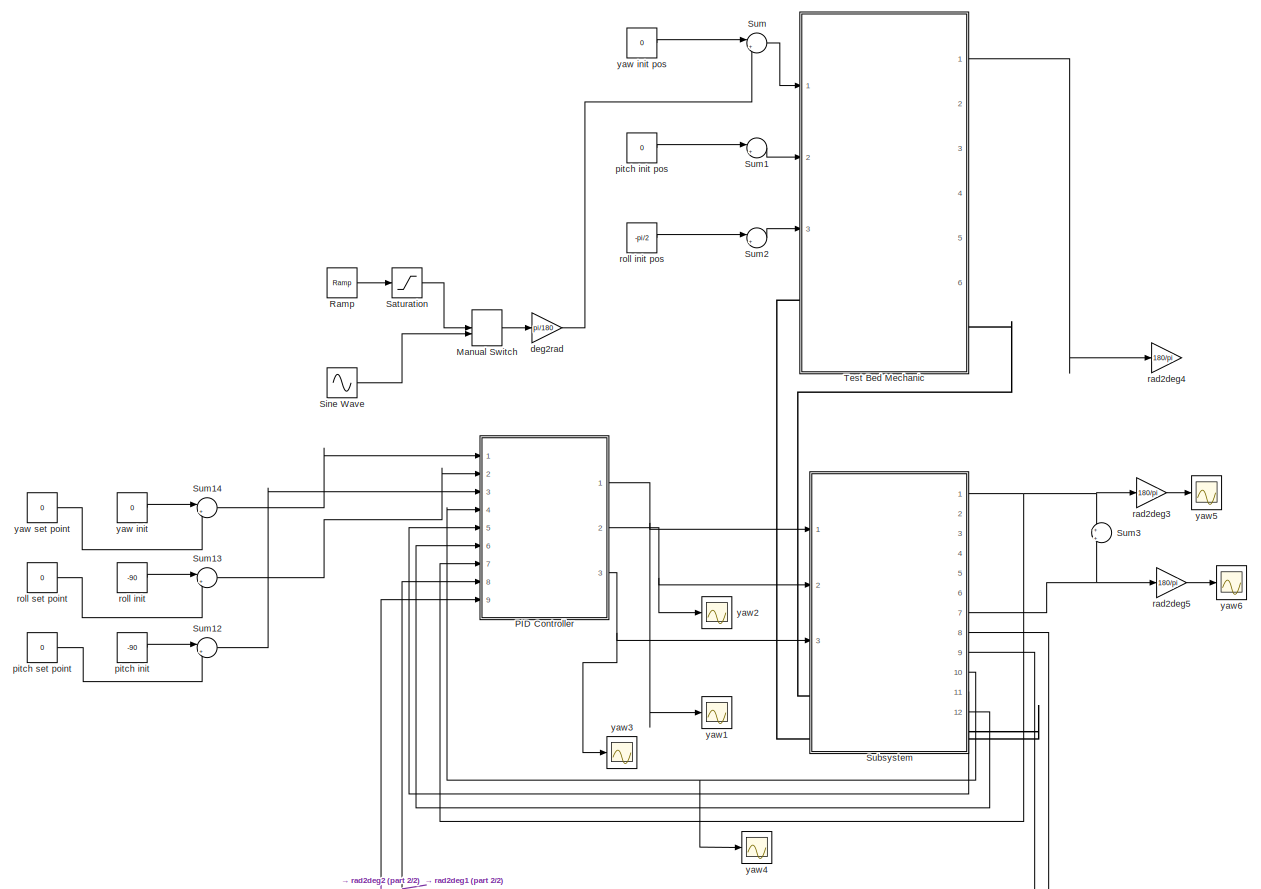
[diagram: root canvas - part 1/2, most of the canvas]
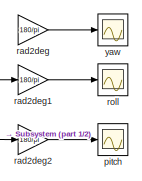
[diagram: root canvas - part 2/2, bottom center region]
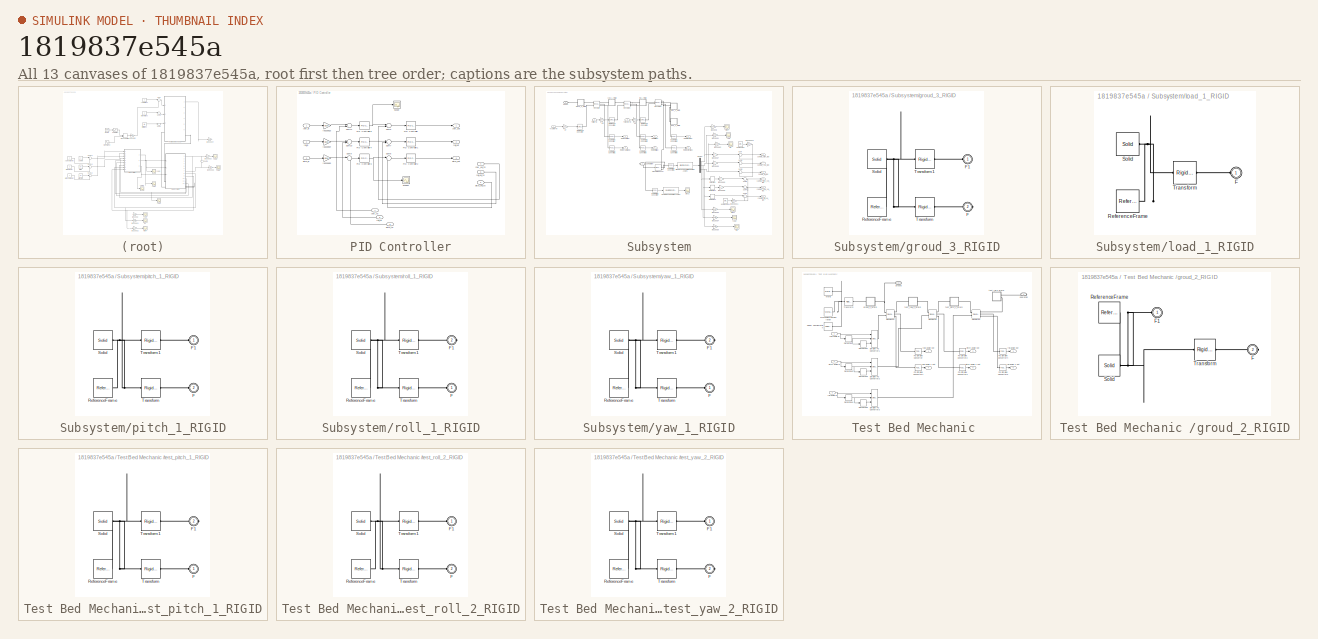
[diagram: thumbnail index - all 13 canvases of the model, root first then tree order]
MODEL slx_1819837e545a
KIND model
CONFIG AbsTol = auto
CONFIG FixedStep = 0.0005
CONFIG MaxStep = auto
CONFIG MinStep = auto
CONFIG RelTol = 1e-3
CONFIG SampleTimeConstraint = Unconstrained
CONFIG Solver = ode2
CONFIG SolverMode = Auto
CONFIG SolverName = ode2
CONFIG StartTime = 0.0
CONFIG StopTime = 10
BLOCK [ManualSwitch] Manual Switch
BLOCK [SubSystem] PID Controller
  Ports = [9, 3]
  RequestExecContextInheritance = off
  TreatAsAtomicUnit = on
  Variant = off
BLOCK [Reference] PID Controller/PID Controller  REF=simulink/Continuous/PID Controller
  Ports = [1, 1]
  SourceBlock = simulink/Continuous/PID Controller
  SourceType = PID 1dof
BLOCK [Reference] PID Controller/PID Controller1  REF=simulink/Continuous/PID Controller
  Ports = [1, 1]
  SourceBlock = simulink/Continuous/PID Controller
  SourceType = PID 1dof
BLOCK [Reference] PID Controller/PID Controller2  REF=simulink/Continuous/PID Controller
  Ports = [1, 1]
  SourceBlock = simulink/Continuous/PID Controller
  SourceType = PID 1dof
BLOCK [Reference] PID Controller/PID Controller3  REF=simulink/Continuous/PID Controller
  Ports = [1, 1]
  SourceBlock = simulink/Continuous/PID Controller
  SourceType = PID 1dof
BLOCK [Reference] PID Controller/PID Controller4  REF=simulink/Continuous/PID Controller
  Ports = [1, 1]
  SourceBlock = simulink/Continuous/PID Controller
  SourceType = PID 1dof
BLOCK [Reference] PID Controller/PID Controller5  REF=simulink/Continuous/PID Controller
  Ports = [1, 1]
  SourceBlock = simulink/Continuous/PID Controller
  SourceType = PID 1dof
BLOCK [Scope] PID Controller/Scope
  Ports = [1]
  ScopeSpecificationString = C++SS(StrPVP('SaveName','ScopeData1'),StrPVP('LimitDataPoints','on'),StrPVP('DataFormat','Array'),StrPVP('Decimation','1'),StrPVP('BlockParamSampleInput','off'))
BLOCK [Scope] PID Controller/Scope1
  Ports = [1]
  ScopeSpecificationString = Simulink.scopes.TimeScopeBlockCfg('CurrentConfiguration', extmgr.ConfigurationSet(extmgr.Configuration('Core','General UI',true),extmgr.Configuration('Core','Source UI',true),extmgr.Configuration('Sources','WiredSimulink',true,'DataLoggingVariableName','ScopeData2'),extmgr.Configuration('Visuals','Time Domain',true,'SerializedDisplays',{struct('MinYLimReal','-3.37651','MaxYLimReal','0.38858','YLab...<+1374ch>
BLOCK [Sum] PID Controller/Sum10
  IconShape = round
  InputSameDT = off
  Inputs = |+-
  OutDataTypeStr = Inherit: Inherit via internal rule
  Ports = [2, 1]
  SaturateOnIntegerOverflow = off
BLOCK [Sum] PID Controller/Sum11
  IconShape = round
  InputSameDT = off
  Inputs = |+-
  OutDataTypeStr = Inherit: Inherit via internal rule
  Ports = [2, 1]
  SaturateOnIntegerOverflow = off
BLOCK [Sum] PID Controller/Sum6
  IconShape = round
  InputSameDT = off
  Inputs = |+-
  OutDataTypeStr = Inherit: Inherit via internal rule
  Ports = [2, 1]
  SaturateOnIntegerOverflow = off
BLOCK [Sum] PID Controller/Sum7
  IconShape = round
  InputSameDT = off
  Inputs = |+-
  OutDataTypeStr = Inherit: Inherit via internal rule
  Ports = [2, 1]
  SaturateOnIntegerOverflow = off
BLOCK [Sum] PID Controller/Sum8
  IconShape = round
  InputSameDT = off
  Inputs = |+-
  OutDataTypeStr = Inherit: Inherit via internal rule
  Ports = [2, 1]
  SaturateOnIntegerOverflow = off
BLOCK [Sum] PID Controller/Sum9
  IconShape = round
  InputSameDT = off
  Inputs = |+-
  OutDataTypeStr = Inherit: Inherit via internal rule
  Ports = [2, 1]
  SaturateOnIntegerOverflow = off
BLOCK [Inport] PID Controller/pitch_fb
  IconDisplay = Port number
  Port = 9
BLOCK [Inport] PID Controller/pitch_in
  IconDisplay = Port number
  Port = 3
BLOCK [Outport] PID Controller/pitch_out
  IconDisplay = Port number
  Port = 3
BLOCK [Inport] PID Controller/pitch_vel_fb
  IconDisplay = Port number
  Port = 6
BLOCK [Gain] PID Controller/rad2deg3
  Gain = pi/180
  OutDataTypeStr = Inherit: Inherit via internal rule
  ParamDataTypeStr = Inherit: Inherit via internal rule
  SaturateOnIntegerOverflow = off
BLOCK [Gain] PID Controller/rad2deg4
  Gain = pi/180
  OutDataTypeStr = Inherit: Inherit via internal rule
  ParamDataTypeStr = Inherit: Inherit via internal rule
  SaturateOnIntegerOverflow = off
BLOCK [Gain] PID Controller/rad2deg5
  Gain = pi/180
  OutDataTypeStr = Inherit: Inherit via internal rule
  ParamDataTypeStr = Inherit: Inherit via internal rule
  SaturateOnIntegerOverflow = off
BLOCK [Inport] PID Controller/roll_fb
  IconDisplay = Port number
  Port = 8
BLOCK [Inport] PID Controller/roll_in
  IconDisplay = Port number
  Port = 2
BLOCK [Outport] PID Controller/roll_out
  IconDisplay = Port number
  Port = 2
BLOCK [Inport] PID Controller/roll_vel_fb
  IconDisplay = Port number
  Port = 5
BLOCK [Inport] PID Controller/yaw_fb
  IconDisplay = Port number
  Port = 7
BLOCK [Inport] PID Controller/yaw_in
  IconDisplay = Port number
BLOCK [Outport] PID Controller/yaw_out
  IconDisplay = Port number
BLOCK [Inport] PID Controller/yaw_vel_fb
  IconDisplay = Port number
  Port = 4
BLOCK [Reference] Ramp  REF=simulink/Sources/Ramp
  Ports = [0, 1]
  SourceBlock = simulink/Sources/Ramp
  SourceType = Ramp
BLOCK [Saturate] Saturation
  InputPortMap = u0
  LowerLimit = -70
  Ports = [1, 1]
  UpperLimit = 70
BLOCK [Sin] Sine Wave
  Amplitude = 90
  Ports = [0, 1]
  SampleTime = 0
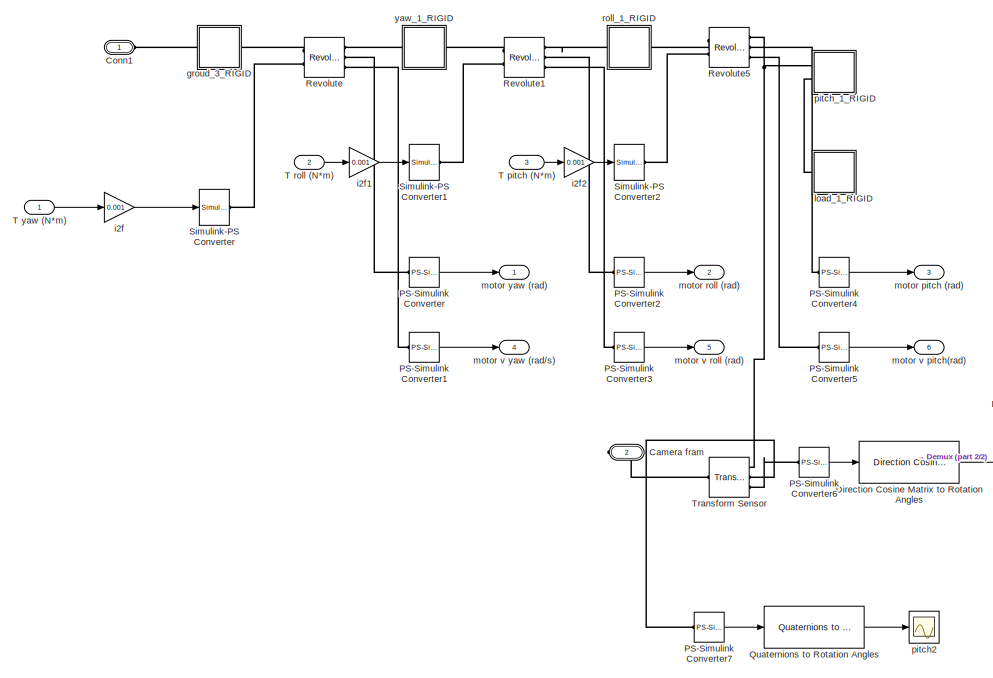
[diagram: Subsystem - part 1/2, central region]
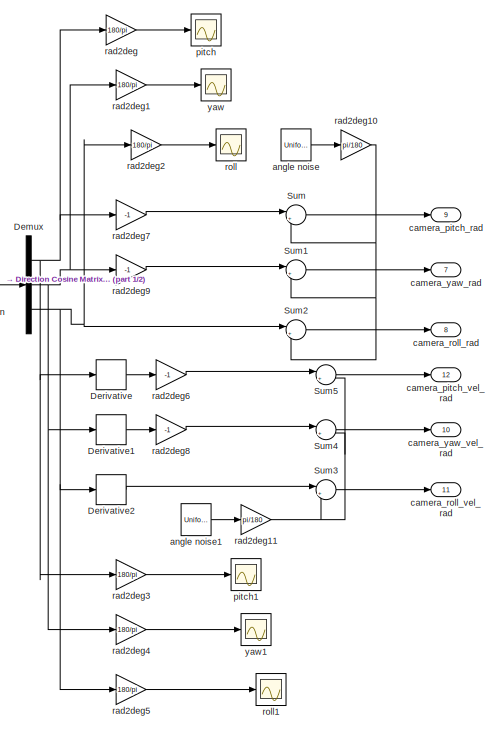
[diagram: Subsystem - part 2/2, right side, full height]
BLOCK [SubSystem] Subsystem
  Ports = [3, 12, 0, 0, 0, 1, 1]
  RequestExecContextInheritance = off
  Variant = off
BLOCK [PMIOPort] Subsystem/Camera fram
  Port = 2
  Side = Right
BLOCK [PMIOPort] Subsystem/Conn1
  Port = 1
  Side = Left
BLOCK [Demux] Subsystem/Demux
  DisplayOption = bar
  Outputs = 3
  Ports = [1, 3]
BLOCK [Derivative] Subsystem/Derivative
BLOCK [Derivative] Subsystem/Derivative1
BLOCK [Derivative] Subsystem/Derivative2
BLOCK [Reference] Subsystem/Direction Cosine Matrix to Rotation Angles  REF=aerolibtransform2/Direction Cosine Matrix
to Rotation Angles
  AttributesFormatString = Rotation Order: %<rotationOrder>
  Ports = [1, 1]
  SourceBlock = aerolibtransform2/Direction Cosine Matrix\nto Rotation Angles
  SourceType = DCM2Ang
BLOCK [Reference] Subsystem/PS-Simulink Converter  REF=nesl_utility/PS-Simulink
Converter
  Ports = [0, 1, 0, 0, 0, 1]
  SourceBlock = nesl_utility/PS-Simulink\nConverter
  SourceType = PS-Simulink\nConverter
BLOCK [Reference] Subsystem/PS-Simulink Converter1  REF=nesl_utility/PS-Simulink
Converter
  Ports = [0, 1, 0, 0, 0, 1]
  SourceBlock = nesl_utility/PS-Simulink\nConverter
  SourceType = PS-Simulink\nConverter
BLOCK [Reference] Subsystem/PS-Simulink Converter2  REF=nesl_utility/PS-Simulink
Converter
  Ports = [0, 1, 0, 0, 0, 1]
  SourceBlock = nesl_utility/PS-Simulink\nConverter
  SourceType = PS-Simulink\nConverter
BLOCK [Reference] Subsystem/PS-Simulink Converter3  REF=nesl_utility/PS-Simulink
Converter
  Ports = [0, 1, 0, 0, 0, 1]
  SourceBlock = nesl_utility/PS-Simulink\nConverter
  SourceType = PS-Simulink\nConverter
BLOCK [Reference] Subsystem/PS-Simulink Converter4  REF=nesl_utility/PS-Simulink
Converter
  Ports = [0, 1, 0, 0, 0, 1]
  SourceBlock = nesl_utility/PS-Simulink\nConverter
  SourceType = PS-Simulink\nConverter
BLOCK [Reference] Subsystem/PS-Simulink Converter5  REF=nesl_utility/PS-Simulink
Converter
  Ports = [0, 1, 0, 0, 0, 1]
  SourceBlock = nesl_utility/PS-Simulink\nConverter
  SourceType = PS-Simulink\nConverter
BLOCK [Reference] Subsystem/PS-Simulink Converter6  REF=nesl_utility/PS-Simulink
Converter
  Ports = [0, 1, 0, 0, 0, 1]
  SourceBlock = nesl_utility/PS-Simulink\nConverter
  SourceType = PS-Simulink\nConverter
BLOCK [Reference] Subsystem/PS-Simulink Converter7  REF=nesl_utility/PS-Simulink
Converter
  Ports = [0, 1, 0, 0, 0, 1]
  SourceBlock = nesl_utility/PS-Simulink\nConverter
  SourceType = PS-Simulink\nConverter
BLOCK [Reference] Subsystem/Quaternions to Rotation Angles  REF=aerolibtransform2/Quaternions to Rotation Angles
  AttributesFormatString = Rotation Order: %<rotationOrder>
  Ports = [1, 1]
  SourceBlock = aerolibtransform2/Quaternions to Rotation Angles
  SourceType = Quat2Ang
BLOCK [Reference] Subsystem/Revolute  REF=sm_lib/Joints/Revolute Joint
  Ports = [0, 0, 0, 0, 0, 2, 3]
  SourceBlock = sm_lib/Joints/Revolute Joint
  SourceType = Revolute Joint
BLOCK [Reference] Subsystem/Revolute1  REF=sm_lib/Joints/Revolute Joint
  Ports = [0, 0, 0, 0, 0, 2, 3]
  SourceBlock = sm_lib/Joints/Revolute Joint
  SourceType = Revolute Joint
BLOCK [Reference] Subsystem/Revolute5  REF=sm_lib/Joints/Revolute Joint
  Ports = [0, 0, 0, 0, 0, 2, 3]
  SourceBlock = sm_lib/Joints/Revolute Joint
  SourceType = Revolute Joint
BLOCK [Reference] Subsystem/Simulink-PS Converter  REF=nesl_utility/Simulink-PS
Converter
  Ports = [1, 0, 0, 0, 0, 0, 1]
  SourceBlock = nesl_utility/Simulink-PS\nConverter
  SourceType = Simulink-PS\nConverter
BLOCK [Reference] Subsystem/Simulink-PS Converter1  REF=nesl_utility/Simulink-PS
Converter
  Ports = [1, 0, 0, 0, 0, 0, 1]
  SourceBlock = nesl_utility/Simulink-PS\nConverter
  SourceType = Simulink-PS\nConverter
BLOCK [Reference] Subsystem/Simulink-PS Converter2  REF=nesl_utility/Simulink-PS
Converter
  Ports = [1, 0, 0, 0, 0, 0, 1]
  SourceBlock = nesl_utility/Simulink-PS\nConverter
  SourceType = Simulink-PS\nConverter
BLOCK [Sum] Subsystem/Sum
  IconShape = round
  InputSameDT = off
  Inputs = |++
  OutDataTypeStr = Inherit: Inherit via internal rule
  Ports = [2, 1]
  SaturateOnIntegerOverflow = off
BLOCK [Sum] Subsystem/Sum1
  IconShape = round
  InputSameDT = off
  Inputs = |++
  OutDataTypeStr = Inherit: Inherit via internal rule
  Ports = [2, 1]
  SaturateOnIntegerOverflow = off
BLOCK [Sum] Subsystem/Sum2
  IconShape = round
  InputSameDT = off
  Inputs = |++
  OutDataTypeStr = Inherit: Inherit via internal rule
  Ports = [2, 1]
  SaturateOnIntegerOverflow = off
BLOCK [Sum] Subsystem/Sum3
  IconShape = round
  InputSameDT = off
  Inputs = |++
  OutDataTypeStr = Inherit: Inherit via internal rule
  Ports = [2, 1]
  SaturateOnIntegerOverflow = off
BLOCK [Sum] Subsystem/Sum4
  IconShape = round
  InputSameDT = off
  Inputs = |++
  OutDataTypeStr = Inherit: Inherit via internal rule
  Ports = [2, 1]
  SaturateOnIntegerOverflow = off
BLOCK [Sum] Subsystem/Sum5
  IconShape = round
  InputSameDT = off
  Inputs = |++
  OutDataTypeStr = Inherit: Inherit via internal rule
  Ports = [2, 1]
  SaturateOnIntegerOverflow = off
BLOCK [Inport] Subsystem/T pitch (N*m)
  IconDisplay = Port number
  Port = 3
BLOCK [Inport] Subsystem/T roll (N*m)
  IconDisplay = Port number
  Port = 2
BLOCK [Inport] Subsystem/T yaw (N*m)
  IconDisplay = Port number
BLOCK [Reference] Subsystem/Transform Sensor  REF=sm_lib/Frames and
Transforms/Transform
Sensor
  Ports = [0, 0, 0, 0, 0, 1, 3]
  SourceBlock = sm_lib/Frames and\nTransforms/Transform\nSensor
  SourceType = Transform\nSensor
BLOCK [UniformRandomNumber] Subsystem/angle noise
  Maximum = 0.02
  Minimum = -0.02
  SampleTime = 0.001
BLOCK [UniformRandomNumber] Subsystem/angle noise1
  Maximum = 0.07
  Minimum = -0.07
  SampleTime = 0.001
BLOCK [Outport] Subsystem/camera_pitch_rad
  IconDisplay = Port number
  Port = 9
BLOCK [Outport] Subsystem/camera_pitch_vel_rad
  IconDisplay = Port number
  Port = 12
BLOCK [Outport] Subsystem/camera_roll_rad
  IconDisplay = Port number
  Port = 8
BLOCK [Outport] Subsystem/camera_roll_vel_rad
  IconDisplay = Port number
  Port = 11
BLOCK [Outport] Subsystem/camera_yaw_rad
  IconDisplay = Port number
  Port = 7
BLOCK [Outport] Subsystem/camera_yaw_vel_rad
  IconDisplay = Port number
  Port = 10
BLOCK [SubSystem] Subsystem/groud_3_RIGID
  Ports = [0, 0, 0, 0, 0, 1, 1]
  RequestExecContextInheritance = off
  Variant = off
BLOCK [PMIOPort] Subsystem/groud_3_RIGID/F
  Port = 2
  Side = Right
BLOCK [PMIOPort] Subsystem/groud_3_RIGID/F1
  Port = 1
  Side = Left
BLOCK [Reference] Subsystem/groud_3_RIGID/ReferenceFrame  REF=sm_lib/Frames and
Transforms/Reference
Frame
  Ports = [0, 0, 0, 0, 0, 0, 1]
  SourceBlock = sm_lib/Frames and\nTransforms/Reference\nFrame
  SourceType = Reference\nFrame
BLOCK [Reference] Subsystem/groud_3_RIGID/Solid  REF=sm_lib/Body Elements/Solid
  Ports = [0, 0, 0, 0, 0, 0, 1]
  SourceBlock = sm_lib/Body Elements/Solid
  SourceType = Solid
BLOCK [Reference] Subsystem/groud_3_RIGID/Transform  REF=sm_lib/Frames and
Transforms/Rigid
Transform
  Ports = [0, 0, 0, 0, 0, 1, 1]
  SourceBlock = sm_lib/Frames and\nTransforms/Rigid\nTransform
  SourceType = Rigid\nTransform
BLOCK [Reference] Subsystem/groud_3_RIGID/Transform1  REF=sm_lib/Frames and
Transforms/Rigid
Transform
  Ports = [0, 0, 0, 0, 0, 1, 1]
  SourceBlock = sm_lib/Frames and\nTransforms/Rigid\nTransform
  SourceType = Rigid\nTransform
BLOCK [Gain] Subsystem/i2f
  Gain = 0.001
  OutDataTypeStr = Inherit: Inherit via internal rule
  ParamDataTypeStr = Inherit: Inherit via internal rule
  SaturateOnIntegerOverflow = off
BLOCK [Gain] Subsystem/i2f1
  Gain = 0.001
  OutDataTypeStr = Inherit: Inherit via internal rule
  ParamDataTypeStr = Inherit: Inherit via internal rule
  SaturateOnIntegerOverflow = off
BLOCK [Gain] Subsystem/i2f2
  Gain = 0.001
  OutDataTypeStr = Inherit: Inherit via internal rule
  ParamDataTypeStr = Inherit: Inherit via internal rule
  SaturateOnIntegerOverflow = off
BLOCK [SubSystem] Subsystem/load_1_RIGID
  Ports = [0, 0, 0, 0, 0, 1]
  RequestExecContextInheritance = off
  Variant = off
BLOCK [PMIOPort] Subsystem/load_1_RIGID/F
  Port = 1
  Side = Left
BLOCK [Reference] Subsystem/load_1_RIGID/ReferenceFrame  REF=sm_lib/Frames and
Transforms/Reference
Frame
  Ports = [0, 0, 0, 0, 0, 0, 1]
  SourceBlock = sm_lib/Frames and\nTransforms/Reference\nFrame
  SourceType = Reference\nFrame
BLOCK [Reference] Subsystem/load_1_RIGID/Solid  REF=sm_lib/Body Elements/Solid
  Ports = [0, 0, 0, 0, 0, 0, 1]
  SourceBlock = sm_lib/Body Elements/Solid
  SourceType = Solid
BLOCK [Reference] Subsystem/load_1_RIGID/Transform  REF=sm_lib/Frames and
Transforms/Rigid
Transform
  Ports = [0, 0, 0, 0, 0, 1, 1]
  SourceBlock = sm_lib/Frames and\nTransforms/Rigid\nTransform
  SourceType = Rigid\nTransform
BLOCK [Outport] Subsystem/motor pitch (rad)
  IconDisplay = Port number
  Port = 3
BLOCK [Outport] Subsystem/motor roll (rad)
  IconDisplay = Port number
  Port = 2
BLOCK [Outport] Subsystem/motor v pitch(rad)
  IconDisplay = Port number
  Port = 6
BLOCK [Outport] Subsystem/motor v roll (rad)
  IconDisplay = Port number
  Port = 5
BLOCK [Outport] Subsystem/motor v yaw (rad//s)
  IconDisplay = Port number
  Port = 4
BLOCK [Outport] Subsystem/motor yaw (rad)
  IconDisplay = Port number
BLOCK [Scope] Subsystem/pitch
  Ports = [1]
  ScopeSpecificationString = Simulink.scopes.TimeScopeBlockCfg('CurrentConfiguration', extmgr.ConfigurationSet(extmgr.Configuration('Core','General UI',true),extmgr.Configuration('Core','Source UI',true),extmgr.Configuration('Sources','WiredSimulink',true),extmgr.Configuration('Visuals','Time Domain',true,'SerializedDisplays',{struct('MinYLimReal','81.40694','MaxYLimReal','90.95775','YLabelReal','','MinYLimMag','81.40694','Ma...<+1362ch>
BLOCK [Scope] Subsystem/pitch1
  Ports = [1]
  ScopeSpecificationString = Simulink.scopes.TimeScopeBlockCfg('CurrentConfiguration', extmgr.ConfigurationSet(extmgr.Configuration('Core','General UI',true),extmgr.Configuration('Core','Source UI',true),extmgr.Configuration('Sources','WiredSimulink',true,'DataLoggingVariableName','ScopeData3'),extmgr.Configuration('Visuals','Time Domain',true,'SerializedDisplays',{struct('MinYLimReal','81.40694','MaxYLimReal','90.95775','YLa...<+1402ch>
BLOCK [Scope] Subsystem/pitch2
  Ports = [1]
  ScopeSpecificationString = Simulink.scopes.TimeScopeBlockCfg('CurrentConfiguration', extmgr.ConfigurationSet(extmgr.Configuration('Core','General UI',true),extmgr.Configuration('Core','Source UI',true),extmgr.Configuration('Sources','WiredSimulink',true,'DataLoggingVariableName','ScopeData12'),extmgr.Configuration('Visuals','Time Domain',true,'SerializedDisplays',{struct('MinYLimReal','-3.92561','MaxYLimReal','3.92481','YLa...<+1491ch>
BLOCK [SubSystem] Subsystem/pitch_1_RIGID
  Ports = [0, 0, 0, 0, 0, 2]
  RequestExecContextInheritance = off
  Variant = off
BLOCK [PMIOPort] Subsystem/pitch_1_RIGID/F
  Port = 2
  Side = Left
BLOCK [PMIOPort] Subsystem/pitch_1_RIGID/F1
  Port = 1
  Side = Left
BLOCK [Reference] Subsystem/pitch_1_RIGID/ReferenceFrame  REF=sm_lib/Frames and
Transforms/Reference
Frame
  Ports = [0, 0, 0, 0, 0, 0, 1]
  SourceBlock = sm_lib/Frames and\nTransforms/Reference\nFrame
  SourceType = Reference\nFrame
BLOCK [Reference] Subsystem/pitch_1_RIGID/Solid  REF=sm_lib/Body Elements/Solid
  Ports = [0, 0, 0, 0, 0, 0, 1]
  SourceBlock = sm_lib/Body Elements/Solid
  SourceType = Solid
BLOCK [Reference] Subsystem/pitch_1_RIGID/Transform  REF=sm_lib/Frames and
Transforms/Rigid
Transform
  Ports = [0, 0, 0, 0, 0, 1, 1]
  SourceBlock = sm_lib/Frames and\nTransforms/Rigid\nTransform
  SourceType = Rigid\nTransform
BLOCK [Reference] Subsystem/pitch_1_RIGID/Transform1  REF=sm_lib/Frames and
Transforms/Rigid
Transform
  Ports = [0, 0, 0, 0, 0, 1, 1]
  SourceBlock = sm_lib/Frames and\nTransforms/Rigid\nTransform
  SourceType = Rigid\nTransform
BLOCK [Gain] Subsystem/rad2deg
  Gain = 180/pi
  OutDataTypeStr = Inherit: Inherit via internal rule
  ParamDataTypeStr = Inherit: Inherit via internal rule
  SaturateOnIntegerOverflow = off
BLOCK [Gain] Subsystem/rad2deg1
  Gain = 180/pi
  OutDataTypeStr = Inherit: Inherit via internal rule
  ParamDataTypeStr = Inherit: Inherit via internal rule
  SaturateOnIntegerOverflow = off
BLOCK [Gain] Subsystem/rad2deg10
  Gain = pi/180
  OutDataTypeStr = Inherit: Inherit via internal rule
  ParamDataTypeStr = Inherit: Inherit via internal rule
  SaturateOnIntegerOverflow = off
BLOCK [Gain] Subsystem/rad2deg11
  Gain = pi/180
  OutDataTypeStr = Inherit: Inherit via internal rule
  ParamDataTypeStr = Inherit: Inherit via internal rule
  SaturateOnIntegerOverflow = off
BLOCK [Gain] Subsystem/rad2deg2
  Gain = 180/pi
  OutDataTypeStr = Inherit: Inherit via internal rule
  ParamDataTypeStr = Inherit: Inherit via internal rule
  SaturateOnIntegerOverflow = off
BLOCK [Gain] Subsystem/rad2deg3
  Gain = 180/pi
  OutDataTypeStr = Inherit: Inherit via internal rule
  ParamDataTypeStr = Inherit: Inherit via internal rule
  SaturateOnIntegerOverflow = off
BLOCK [Gain] Subsystem/rad2deg4
  Gain = 180/pi
  OutDataTypeStr = Inherit: Inherit via internal rule
  ParamDataTypeStr = Inherit: Inherit via internal rule
  SaturateOnIntegerOverflow = off
BLOCK [Gain] Subsystem/rad2deg5
  Gain = 180/pi
  OutDataTypeStr = Inherit: Inherit via internal rule
  ParamDataTypeStr = Inherit: Inherit via internal rule
  SaturateOnIntegerOverflow = off
BLOCK [Gain] Subsystem/rad2deg6
  Gain = -1
  OutDataTypeStr = Inherit: Inherit via internal rule
  ParamDataTypeStr = Inherit: Inherit via internal rule
  SaturateOnIntegerOverflow = off
BLOCK [Gain] Subsystem/rad2deg7
  Gain = -1
  OutDataTypeStr = Inherit: Inherit via internal rule
  ParamDataTypeStr = Inherit: Inherit via internal rule
  SaturateOnIntegerOverflow = off
BLOCK [Gain] Subsystem/rad2deg8
  Gain = -1
  OutDataTypeStr = Inherit: Inherit via internal rule
  ParamDataTypeStr = Inherit: Inherit via internal rule
  SaturateOnIntegerOverflow = off
BLOCK [Gain] Subsystem/rad2deg9
  Gain = -1
  OutDataTypeStr = Inherit: Inherit via internal rule
  ParamDataTypeStr = Inherit: Inherit via internal rule
  SaturateOnIntegerOverflow = off
BLOCK [Scope] Subsystem/roll
  Ports = [1]
  ScopeSpecificationString = Simulink.scopes.TimeScopeBlockCfg('CurrentConfiguration', extmgr.ConfigurationSet(extmgr.Configuration('Core','General UI',true),extmgr.Configuration('Core','Source UI',true),extmgr.Configuration('Sources','WiredSimulink',true,'DataLoggingVariableName','ScopeData2'),extmgr.Configuration('Visuals','Time Domain',true,'SerializedDisplays',{struct('MinYLimReal','-92.75234','MaxYLimReal','-65.24054','Y...<+1404ch>
BLOCK [Scope] Subsystem/roll1
  Ports = [1]
  ScopeSpecificationString = Simulink.scopes.TimeScopeBlockCfg('CurrentConfiguration', extmgr.ConfigurationSet(extmgr.Configuration('Core','General UI',true),extmgr.Configuration('Core','Source UI',true),extmgr.Configuration('Sources','WiredSimulink',true,'DataLoggingVariableName','ScopeData4'),extmgr.Configuration('Visuals','Time Domain',true,'SerializedDisplays',{struct('MinYLimReal','-90.00000000000027','MaxYLimReal','-89....<+1476ch>
BLOCK [SubSystem] Subsystem/roll_1_RIGID
  Ports = [0, 0, 0, 0, 0, 1, 1]
  RequestExecContextInheritance = off
  Variant = off
BLOCK [PMIOPort] Subsystem/roll_1_RIGID/F
  Port = 1
  Side = Left
BLOCK [PMIOPort] Subsystem/roll_1_RIGID/F1
  Port = 2
  Side = Right
BLOCK [Reference] Subsystem/roll_1_RIGID/ReferenceFrame  REF=sm_lib/Frames and
Transforms/Reference
Frame
  Ports = [0, 0, 0, 0, 0, 0, 1]
  SourceBlock = sm_lib/Frames and\nTransforms/Reference\nFrame
  SourceType = Reference\nFrame
BLOCK [Reference] Subsystem/roll_1_RIGID/Solid  REF=sm_lib/Body Elements/Solid
  Ports = [0, 0, 0, 0, 0, 0, 1]
  SourceBlock = sm_lib/Body Elements/Solid
  SourceType = Solid
BLOCK [Reference] Subsystem/roll_1_RIGID/Transform  REF=sm_lib/Frames and
Transforms/Rigid
Transform
  Ports = [0, 0, 0, 0, 0, 1, 1]
  SourceBlock = sm_lib/Frames and\nTransforms/Rigid\nTransform
  SourceType = Rigid\nTransform
BLOCK [Reference] Subsystem/roll_1_RIGID/Transform1  REF=sm_lib/Frames and
Transforms/Rigid
Transform
  Ports = [0, 0, 0, 0, 0, 1, 1]
  SourceBlock = sm_lib/Frames and\nTransforms/Rigid\nTransform
  SourceType = Rigid\nTransform
BLOCK [Scope] Subsystem/yaw
  Ports = [1]
  ScopeSpecificationString = Simulink.scopes.TimeScopeBlockCfg('CurrentConfiguration', extmgr.ConfigurationSet(extmgr.Configuration('Core','General UI',true),extmgr.Configuration('Core','Source UI',true),extmgr.Configuration('Sources','WiredSimulink',true,'DataLoggingVariableName','ScopeData1'),extmgr.Configuration('Visuals','Time Domain',true,'SerializedDisplays',{struct('MinYLimReal','-2.02539','MaxYLimReal','18.22094','YLa...<+1400ch>
BLOCK [Scope] Subsystem/yaw1
  Ports = [1]
  ScopeSpecificationString = Simulink.scopes.TimeScopeBlockCfg('CurrentConfiguration', extmgr.ConfigurationSet(extmgr.Configuration('Core','General UI',true),extmgr.Configuration('Core','Source UI',true),extmgr.Configuration('Sources','WiredSimulink',true,'DataLoggingVariableName','ScopeData5'),extmgr.Configuration('Visuals','Time Domain',true,'SerializedDisplays',{struct('MinYLimReal','-2.02539','MaxYLimReal','18.22094','YLa...<+1400ch>
BLOCK [SubSystem] Subsystem/yaw_1_RIGID
  Ports = [0, 0, 0, 0, 0, 1, 1]
  RequestExecContextInheritance = off
  Variant = off
BLOCK [PMIOPort] Subsystem/yaw_1_RIGID/F
  Port = 1
  Side = Left
BLOCK [PMIOPort] Subsystem/yaw_1_RIGID/F1
  Port = 2
  Side = Right
BLOCK [Reference] Subsystem/yaw_1_RIGID/ReferenceFrame  REF=sm_lib/Frames and
Transforms/Reference
Frame
  Ports = [0, 0, 0, 0, 0, 0, 1]
  SourceBlock = sm_lib/Frames and\nTransforms/Reference\nFrame
  SourceType = Reference\nFrame
BLOCK [Reference] Subsystem/yaw_1_RIGID/Solid  REF=sm_lib/Body Elements/Solid
  Ports = [0, 0, 0, 0, 0, 0, 1]
  SourceBlock = sm_lib/Body Elements/Solid
  SourceType = Solid
BLOCK [Reference] Subsystem/yaw_1_RIGID/Transform  REF=sm_lib/Frames and
Transforms/Rigid
Transform
  Ports = [0, 0, 0, 0, 0, 1, 1]
  SourceBlock = sm_lib/Frames and\nTransforms/Rigid\nTransform
  SourceType = Rigid\nTransform
BLOCK [Reference] Subsystem/yaw_1_RIGID/Transform1  REF=sm_lib/Frames and
Transforms/Rigid
Transform
  Ports = [0, 0, 0, 0, 0, 1, 1]
  SourceBlock = sm_lib/Frames and\nTransforms/Rigid\nTransform
  SourceType = Rigid\nTransform
BLOCK [Sum] Sum
  IconShape = round
  InputSameDT = off
  Inputs = |++
  OutDataTypeStr = Inherit: Inherit via internal rule
  Ports = [2, 1]
  SaturateOnIntegerOverflow = off
BLOCK [Sum] Sum1
  IconShape = round
  InputSameDT = off
  Inputs = |++
  OutDataTypeStr = Inherit: Inherit via internal rule
  Ports = [2, 1]
  SaturateOnIntegerOverflow = off
BLOCK [Sum] Sum12
  AccumDataTypeStr = double
  IconShape = round
  Inputs = |++
  OutDataTypeStr = Inherit: Inherit via internal rule
  Ports = [2, 1]
  SaturateOnIntegerOverflow = off
BLOCK [Sum] Sum13
  AccumDataTypeStr = double
  IconShape = round
  Inputs = |++
  OutDataTypeStr = Inherit: Inherit via internal rule
  Ports = [2, 1]
  SaturateOnIntegerOverflow = off
BLOCK [Sum] Sum14
  AccumDataTypeStr = double
  IconShape = round
  Inputs = |++
  OutDataTypeStr = Inherit: Inherit via internal rule
  Ports = [2, 1]
  SaturateOnIntegerOverflow = off
BLOCK [Sum] Sum2
  IconShape = round
  InputSameDT = off
  Inputs = |++
  OutDataTypeStr = Inherit: Inherit via internal rule
  Ports = [2, 1]
  SaturateOnIntegerOverflow = off
BLOCK [Sum] Sum3
  IconShape = round
  InputSameDT = off
  Inputs = +|+
  OutDataTypeStr = Inherit: Inherit via internal rule
  Ports = [2, 1]
  SaturateOnIntegerOverflow = off
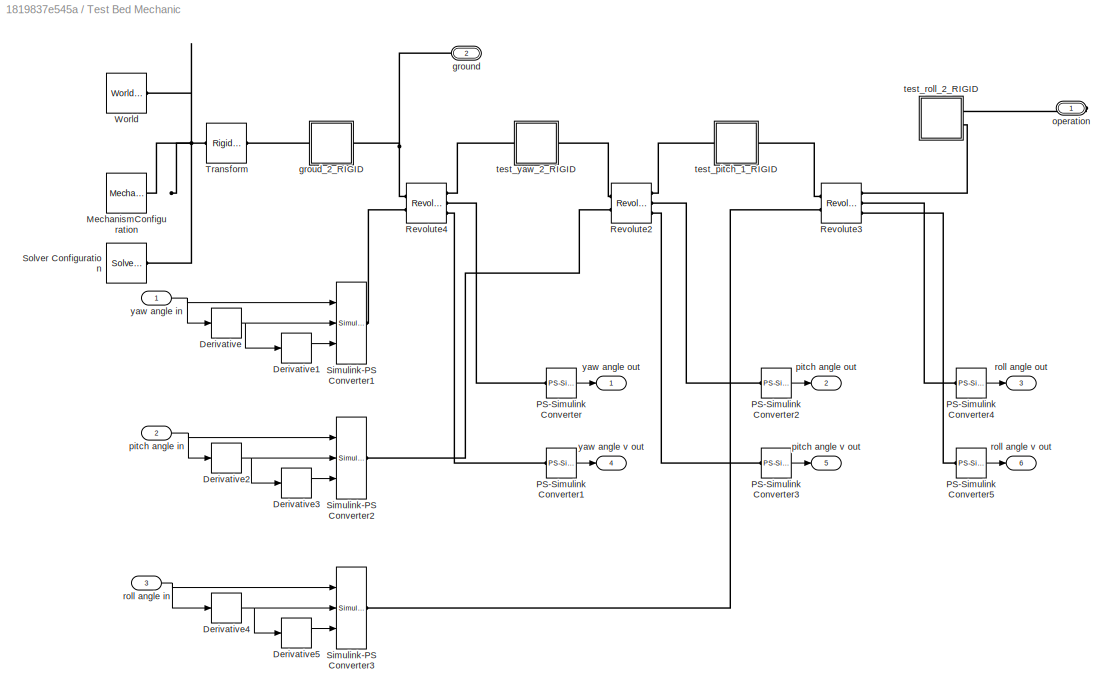
BLOCK [SubSystem] Test Bed Mechanic 
  Ports = [3, 6, 0, 0, 0, 1, 1]
  RequestExecContextInheritance = off
  Variant = off
BLOCK [Derivative] Test Bed Mechanic /Derivative
BLOCK [Derivative] Test Bed Mechanic /Derivative1
BLOCK [Derivative] Test Bed Mechanic /Derivative2
BLOCK [Derivative] Test Bed Mechanic /Derivative3
BLOCK [Derivative] Test Bed Mechanic /Derivative4
BLOCK [Derivative] Test Bed Mechanic /Derivative5
BLOCK [Reference] Test Bed Mechanic /MechanismConfiguration  REF=sm_lib/Utilities/Mechanism
Configuration
  Ports = [0, 0, 0, 0, 0, 0, 1]
  SourceBlock = sm_lib/Utilities/Mechanism\nConfiguration
  SourceType = Mechanism\nConfiguration
BLOCK [Reference] Test Bed Mechanic /PS-Simulink Converter  REF=nesl_utility/PS-Simulink
Converter
  Ports = [0, 1, 0, 0, 0, 1]
  SourceBlock = nesl_utility/PS-Simulink\nConverter
  SourceType = PS-Simulink\nConverter
BLOCK [Reference] Test Bed Mechanic /PS-Simulink Converter1  REF=nesl_utility/PS-Simulink
Converter
  Ports = [0, 1, 0, 0, 0, 1]
  SourceBlock = nesl_utility/PS-Simulink\nConverter
  SourceType = PS-Simulink\nConverter
BLOCK [Reference] Test Bed Mechanic /PS-Simulink Converter2  REF=nesl_utility/PS-Simulink
Converter
  Ports = [0, 1, 0, 0, 0, 1]
  SourceBlock = nesl_utility/PS-Simulink\nConverter
  SourceType = PS-Simulink\nConverter
BLOCK [Reference] Test Bed Mechanic /PS-Simulink Converter3  REF=nesl_utility/PS-Simulink
Converter
  Ports = [0, 1, 0, 0, 0, 1]
  SourceBlock = nesl_utility/PS-Simulink\nConverter
  SourceType = PS-Simulink\nConverter
BLOCK [Reference] Test Bed Mechanic /PS-Simulink Converter4  REF=nesl_utility/PS-Simulink
Converter
  Ports = [0, 1, 0, 0, 0, 1]
  SourceBlock = nesl_utility/PS-Simulink\nConverter
  SourceType = PS-Simulink\nConverter
BLOCK [Reference] Test Bed Mechanic /PS-Simulink Converter5  REF=nesl_utility/PS-Simulink
Converter
  Ports = [0, 1, 0, 0, 0, 1]
  SourceBlock = nesl_utility/PS-Simulink\nConverter
  SourceType = PS-Simulink\nConverter
BLOCK [Reference] Test Bed Mechanic /Revolute2  REF=sm_lib/Joints/Revolute Joint
  Ports = [0, 0, 0, 0, 0, 2, 3]
  SourceBlock = sm_lib/Joints/Revolute Joint
  SourceType = Revolute Joint
BLOCK [Reference] Test Bed Mechanic /Revolute3  REF=sm_lib/Joints/Revolute Joint
  Ports = [0, 0, 0, 0, 0, 2, 3]
  SourceBlock = sm_lib/Joints/Revolute Joint
  SourceType = Revolute Joint
BLOCK [Reference] Test Bed Mechanic /Revolute4  REF=sm_lib/Joints/Revolute Joint
  Ports = [0, 0, 0, 0, 0, 2, 3]
  SourceBlock = sm_lib/Joints/Revolute Joint
  SourceType = Revolute Joint
BLOCK [Reference] Test Bed Mechanic /Simulink-PS Converter1  REF=nesl_utility/Simulink-PS
Converter
  Ports = [3, 0, 0, 0, 0, 0, 1]
  SourceBlock = nesl_utility/Simulink-PS\nConverter
  SourceType = Simulink-PS\nConverter
BLOCK [Reference] Test Bed Mechanic /Simulink-PS Converter2  REF=nesl_utility/Simulink-PS
Converter
  Ports = [3, 0, 0, 0, 0, 0, 1]
  SourceBlock = nesl_utility/Simulink-PS\nConverter
  SourceType = Simulink-PS\nConverter
BLOCK [Reference] Test Bed Mechanic /Simulink-PS Converter3  REF=nesl_utility/Simulink-PS
Converter
  Ports = [3, 0, 0, 0, 0, 0, 1]
  SourceBlock = nesl_utility/Simulink-PS\nConverter
  SourceType = Simulink-PS\nConverter
BLOCK [Reference] Test Bed Mechanic /Solver Configuration  REF=nesl_utility/Solver
Configuration
  Ports = [0, 0, 0, 0, 0, 0, 1]
  SourceBlock = nesl_utility/Solver\nConfiguration
  SourceType = Solver\nConfiguration
BLOCK [Reference] Test Bed Mechanic /Transform  REF=sm_lib/Frames and
Transforms/Rigid
Transform
  Ports = [0, 0, 0, 0, 0, 1, 1]
  SourceBlock = sm_lib/Frames and\nTransforms/Rigid\nTransform
  SourceType = Rigid\nTransform
BLOCK [Reference] Test Bed Mechanic /World  REF=sm_lib/Frames and
Transforms/World Frame
  Ports = [0, 0, 0, 0, 0, 0, 1]
  SourceBlock = sm_lib/Frames and\nTransforms/World Frame
  SourceType = World Frame
BLOCK [SubSystem] Test Bed Mechanic /groud_2_RIGID
  Ports = [0, 0, 0, 0, 0, 1, 1]
  RequestExecContextInheritance = off
  Variant = off
BLOCK [PMIOPort] Test Bed Mechanic /groud_2_RIGID/F
  Port = 2
  Side = Right
BLOCK [PMIOPort] Test Bed Mechanic /groud_2_RIGID/F1
  Port = 1
  Side = Left
BLOCK [Reference] Test Bed Mechanic /groud_2_RIGID/ReferenceFrame  REF=sm_lib/Frames and
Transforms/Reference
Frame
  Ports = [0, 0, 0, 0, 0, 0, 1]
  SourceBlock = sm_lib/Frames and\nTransforms/Reference\nFrame
  SourceType = Reference\nFrame
BLOCK [Reference] Test Bed Mechanic /groud_2_RIGID/Solid  REF=sm_lib/Body Elements/Solid
  Ports = [0, 0, 0, 0, 0, 0, 1]
  SourceBlock = sm_lib/Body Elements/Solid
  SourceType = Solid
BLOCK [Reference] Test Bed Mechanic /groud_2_RIGID/Transform  REF=sm_lib/Frames and
Transforms/Rigid
Transform
  Ports = [0, 0, 0, 0, 0, 1, 1]
  SourceBlock = sm_lib/Frames and\nTransforms/Rigid\nTransform
  SourceType = Rigid\nTransform
BLOCK [PMIOPort] Test Bed Mechanic /ground 
  Port = 2
  Side = Left
BLOCK [PMIOPort] Test Bed Mechanic /operation
  Port = 1
  Side = Right
BLOCK [Inport] Test Bed Mechanic /pitch angle in
  IconDisplay = Port number
  Port = 2
BLOCK [Outport] Test Bed Mechanic /pitch angle out
  IconDisplay = Port number
  Port = 2
BLOCK [Outport] Test Bed Mechanic /pitch angle v out
  IconDisplay = Port number
  Port = 5
BLOCK [Inport] Test Bed Mechanic /roll angle in
  IconDisplay = Port number
  Port = 3
BLOCK [Outport] Test Bed Mechanic /roll angle out
  IconDisplay = Port number
  Port = 3
BLOCK [Outport] Test Bed Mechanic /roll angle v out
  IconDisplay = Port number
  Port = 6
BLOCK [SubSystem] Test Bed Mechanic /test_pitch_1_RIGID
  Ports = [0, 0, 0, 0, 0, 1, 1]
  RequestExecContextInheritance = off
  Variant = off
BLOCK [PMIOPort] Test Bed Mechanic /test_pitch_1_RIGID/F
  Port = 1
  Side = Left
BLOCK [PMIOPort] Test Bed Mechanic /test_pitch_1_RIGID/F1
  Port = 2
  Side = Right
BLOCK [Reference] Test Bed Mechanic /test_pitch_1_RIGID/ReferenceFrame  REF=sm_lib/Frames and
Transforms/Reference
Frame
  Ports = [0, 0, 0, 0, 0, 0, 1]
  SourceBlock = sm_lib/Frames and\nTransforms/Reference\nFrame
  SourceType = Reference\nFrame
BLOCK [Reference] Test Bed Mechanic /test_pitch_1_RIGID/Solid  REF=sm_lib/Body Elements/Solid
  Ports = [0, 0, 0, 0, 0, 0, 1]
  SourceBlock = sm_lib/Body Elements/Solid
  SourceType = Solid
BLOCK [Reference] Test Bed Mechanic /test_pitch_1_RIGID/Transform  REF=sm_lib/Frames and
Transforms/Rigid
Transform
  Ports = [0, 0, 0, 0, 0, 1, 1]
  SourceBlock = sm_lib/Frames and\nTransforms/Rigid\nTransform
  SourceType = Rigid\nTransform
BLOCK [Reference] Test Bed Mechanic /test_pitch_1_RIGID/Transform1  REF=sm_lib/Frames and
Transforms/Rigid
Transform
  Ports = [0, 0, 0, 0, 0, 1, 1]
  SourceBlock = sm_lib/Frames and\nTransforms/Rigid\nTransform
  SourceType = Rigid\nTransform
BLOCK [SubSystem] Test Bed Mechanic /test_roll_2_RIGID
  Ports = [0, 0, 0, 0, 0, 2]
  RequestExecContextInheritance = off
  Variant = off
BLOCK [PMIOPort] Test Bed Mechanic /test_roll_2_RIGID/F
  Port = 2
  Side = Left
BLOCK [PMIOPort] Test Bed Mechanic /test_roll_2_RIGID/F1
  Port = 1
  Side = Left
BLOCK [Reference] Test Bed Mechanic /test_roll_2_RIGID/ReferenceFrame  REF=sm_lib/Frames and
Transforms/Reference
Frame
  Ports = [0, 0, 0, 0, 0, 0, 1]
  SourceBlock = sm_lib/Frames and\nTransforms/Reference\nFrame
  SourceType = Reference\nFrame
BLOCK [Reference] Test Bed Mechanic /test_roll_2_RIGID/Solid  REF=sm_lib/Body Elements/Solid
  Ports = [0, 0, 0, 0, 0, 0, 1]
  SourceBlock = sm_lib/Body Elements/Solid
  SourceType = Solid
BLOCK [Reference] Test Bed Mechanic /test_roll_2_RIGID/Transform  REF=sm_lib/Frames and
Transforms/Rigid
Transform
  Ports = [0, 0, 0, 0, 0, 1, 1]
  SourceBlock = sm_lib/Frames and\nTransforms/Rigid\nTransform
  SourceType = Rigid\nTransform
BLOCK [Reference] Test Bed Mechanic /test_roll_2_RIGID/Transform1  REF=sm_lib/Frames and
Transforms/Rigid
Transform
  Ports = [0, 0, 0, 0, 0, 1, 1]
  SourceBlock = sm_lib/Frames and\nTransforms/Rigid\nTransform
  SourceType = Rigid\nTransform
BLOCK [SubSystem] Test Bed Mechanic /test_yaw_2_RIGID
  Ports = [0, 0, 0, 0, 0, 1, 1]
  RequestExecContextInheritance = off
  Variant = off
BLOCK [PMIOPort] Test Bed Mechanic /test_yaw_2_RIGID/F
  Port = 2
  Side = Right
BLOCK [PMIOPort] Test Bed Mechanic /test_yaw_2_RIGID/F1
  Port = 1
  Side = Left
BLOCK [Reference] Test Bed Mechanic /test_yaw_2_RIGID/ReferenceFrame  REF=sm_lib/Frames and
Transforms/Reference
Frame
  Ports = [0, 0, 0, 0, 0, 0, 1]
  SourceBlock = sm_lib/Frames and\nTransforms/Reference\nFrame
  SourceType = Reference\nFrame
BLOCK [Reference] Test Bed Mechanic /test_yaw_2_RIGID/Solid  REF=sm_lib/Body Elements/Solid
  Ports = [0, 0, 0, 0, 0, 0, 1]
  SourceBlock = sm_lib/Body Elements/Solid
  SourceType = Solid
BLOCK [Reference] Test Bed Mechanic /test_yaw_2_RIGID/Transform  REF=sm_lib/Frames and
Transforms/Rigid
Transform
  Ports = [0, 0, 0, 0, 0, 1, 1]
  SourceBlock = sm_lib/Frames and\nTransforms/Rigid\nTransform
  SourceType = Rigid\nTransform
BLOCK [Reference] Test Bed Mechanic /test_yaw_2_RIGID/Transform1  REF=sm_lib/Frames and
Transforms/Rigid
Transform
  Ports = [0, 0, 0, 0, 0, 1, 1]
  SourceBlock = sm_lib/Frames and\nTransforms/Rigid\nTransform
  SourceType = Rigid\nTransform
BLOCK [Inport] Test Bed Mechanic /yaw angle in
  IconDisplay = Port number
BLOCK [Outport] Test Bed Mechanic /yaw angle out
  IconDisplay = Port number
BLOCK [Outport] Test Bed Mechanic /yaw angle v out
  IconDisplay = Port number
  Port = 4
BLOCK [Gain] deg2rad
  Gain = pi/180
  OutDataTypeStr = Inherit: Inherit via internal rule
  ParamDataTypeStr = Inherit: Inherit via internal rule
  SaturateOnIntegerOverflow = off
BLOCK [Scope] pitch
  Ports = [1]
  ScopeSpecificationString = Simulink.scopes.TimeScopeBlockCfg('CurrentConfiguration', extmgr.ConfigurationSet(extmgr.Configuration('Core','General UI',true),extmgr.Configuration('Core','Source UI',true),extmgr.Configuration('Sources','WiredSimulink',true,'DataLoggingVariableName','ScopeData8'),extmgr.Configuration('Visuals','Time Domain',true,'SerializedDisplays',{struct('MinYLimReal','-90.21606','MaxYLimReal','-89.81937','Y...<+1448ch>
BLOCK [Constant] pitch init
  OutDataTypeStr = double
  Value = -90
BLOCK [Constant] pitch init pos
  Value = 0
BLOCK [Constant] pitch set point
  Value = 0
BLOCK [Gain] rad2deg
  Gain = 180/pi
  OutDataTypeStr = Inherit: Inherit via internal rule
  ParamDataTypeStr = Inherit: Inherit via internal rule
  SaturateOnIntegerOverflow = off
BLOCK [Gain] rad2deg1
  Gain = 180/pi
  OutDataTypeStr = Inherit: Inherit via internal rule
  ParamDataTypeStr = Inherit: Inherit via internal rule
  SaturateOnIntegerOverflow = off
BLOCK [Gain] rad2deg2
  Gain = 180/pi
  OutDataTypeStr = Inherit: Inherit via internal rule
  ParamDataTypeStr = Inherit: Inherit via internal rule
  SaturateOnIntegerOverflow = off
BLOCK [Gain] rad2deg3
  Gain = 180/pi
  OutDataTypeStr = Inherit: Inherit via internal rule
  ParamDataTypeStr = Inherit: Inherit via internal rule
  SaturateOnIntegerOverflow = off
BLOCK [Gain] rad2deg4
  Gain = 180/pi
  OutDataTypeStr = Inherit: Inherit via internal rule
  ParamDataTypeStr = Inherit: Inherit via internal rule
  SaturateOnIntegerOverflow = off
BLOCK [Gain] rad2deg5
  Gain = 180/pi
  OutDataTypeStr = Inherit: Inherit via internal rule
  ParamDataTypeStr = Inherit: Inherit via internal rule
  SaturateOnIntegerOverflow = off
BLOCK [Scope] roll
  Ports = [1]
  ScopeSpecificationString = Simulink.scopes.TimeScopeBlockCfg('CurrentConfiguration', extmgr.ConfigurationSet(extmgr.Configuration('Core','General UI',true),extmgr.Configuration('Core','Source UI',true),extmgr.Configuration('Sources','WiredSimulink',true,'DataLoggingVariableName','ScopeData7'),extmgr.Configuration('Visuals','Time Domain',true,'SerializedDisplays',{struct('MinYLimReal','-92.80323','MaxYLimReal','-65.2401','YL...<+1373ch>
BLOCK [Constant] roll init
  OutDataTypeStr = double
  Value = -90
BLOCK [Constant] roll init pos
  Value = -pi/2
BLOCK [Constant] roll set point
  Value = 0
BLOCK [Scope] yaw
  Ports = [1]
  ScopeSpecificationString = Simulink.scopes.TimeScopeBlockCfg('CurrentConfiguration', extmgr.ConfigurationSet(extmgr.Configuration('Core','General UI',true),extmgr.Configuration('Core','Source UI',true),extmgr.Configuration('Sources','WiredSimulink',true,'DataLoggingVariableName','ScopeData6'),extmgr.Configuration('Visuals','Time Domain',true,'SerializedDisplays',{struct('MinYLimReal','-27.29853','MaxYLimReal','-6.27991','YL...<+1480ch>
BLOCK [Constant] yaw init
  OutDataTypeStr = double
  Value = 0
BLOCK [Constant] yaw init pos
  Value = 0
BLOCK [Constant] yaw set point
  Value = 0
BLOCK [Scope] yaw1
  Ports = [1]
  ScopeSpecificationString = Simulink.scopes.TimeScopeBlockCfg('CurrentConfiguration', extmgr.ConfigurationSet(extmgr.Configuration('Core','General UI',true),extmgr.Configuration('Core','Source UI',true),extmgr.Configuration('Sources','WiredSimulink',true,'DataLoggingVariableName','ScopeData1'),extmgr.Configuration('Visuals','Time Domain',true,'SerializedDisplays',{struct('MinYLimReal','-1036.2078','MaxYLimReal','1226.24531',...<+1439ch>
BLOCK [Scope] yaw2
  Ports = [1]
  ScopeSpecificationString = Simulink.scopes.TimeScopeBlockCfg('CurrentConfiguration', extmgr.ConfigurationSet(extmgr.Configuration('Core','General UI',true),extmgr.Configuration('Core','Source UI',true),extmgr.Configuration('Sources','WiredSimulink',true,'DataLoggingVariableName','ScopeData2'),extmgr.Configuration('Visuals','Time Domain',true,'SerializedDisplays',{struct('MinYLimReal','-1250.00000','MaxYLimReal','1250.00000'...<+1441ch>
BLOCK [Scope] yaw3
  Ports = [1]
  ScopeSpecificationString = Simulink.scopes.TimeScopeBlockCfg('CurrentConfiguration', extmgr.ConfigurationSet(extmgr.Configuration('Core','General UI',true),extmgr.Configuration('Core','Source UI',true),extmgr.Configuration('Sources','WiredSimulink',true,'DataLoggingVariableName','ScopeData3'),extmgr.Configuration('Visuals','Time Domain',true,'SerializedDisplays',{struct('MinYLimReal','-1250.00000','MaxYLimReal','1250.00000'...<+1441ch>
BLOCK [Scope] yaw4
  Ports = [1]
  ScopeSpecificationString = Simulink.scopes.TimeScopeBlockCfg('CurrentConfiguration', extmgr.ConfigurationSet(extmgr.Configuration('Core','General UI',true),extmgr.Configuration('Core','Source UI',true),extmgr.Configuration('Sources','WiredSimulink',true,'DataLoggingVariableName','ScopeData4'),extmgr.Configuration('Visuals','Time Domain',true,'SerializedDisplays',{struct('MinYLimReal','-1.03925','MaxYLimReal','1.04997','YLab...<+1419ch>
BLOCK [Scope] yaw5
  Ports = [1]
  ScopeSpecificationString = Simulink.scopes.TimeScopeBlockCfg('CurrentConfiguration', extmgr.ConfigurationSet(extmgr.Configuration('Core','General UI',true),extmgr.Configuration('Core','Source UI',true),extmgr.Configuration('Sources','WiredSimulink',true,'DataLoggingVariableName','ScopeData3'),extmgr.Configuration('Visuals','Time Domain',true,'SerializedDisplays',{struct('MinYLimReal','-120.18803','MaxYLimReal','113.35423','...<+1454ch>
BLOCK [Scope] yaw6
  Ports = [1]
  ScopeSpecificationString = Simulink.scopes.TimeScopeBlockCfg('CurrentConfiguration', extmgr.ConfigurationSet(extmgr.Configuration('Core','General UI',true),extmgr.Configuration('Core','Source UI',true),extmgr.Configuration('Sources','WiredSimulink',true,'DataLoggingVariableName','ScopeData4'),extmgr.Configuration('Visuals','Time Domain',true,'SerializedDisplays',{struct('MinYLimReal','-120.18803','MaxYLimReal','113.35423','...<+1454ch>
LINE Manual Switch:1 -> deg2rad:1
LINE PID Controller/PID Controller1:1 -> PID Controller/roll_out:1
LINE PID Controller/PID Controller2:1 -> PID Controller/pitch_out:1
NET PID Controller/PID Controller3:1 -> PID Controller/Scope1:1, PID Controller/Sum8:1
LINE PID Controller/PID Controller4:1 -> PID Controller/Sum7:1
NET PID Controller/PID Controller5:1 -> PID Controller/Scope:1, PID Controller/Sum6:1
LINE PID Controller/PID Controller:1 -> PID Controller/yaw_out:1
LINE PID Controller/Sum10:1 -> PID Controller/PID Controller4:1
LINE PID Controller/Sum11:1 -> PID Controller/PID Controller5:1
LINE PID Controller/Sum6:1 -> PID Controller/PID Controller:1
LINE PID Controller/Sum7:1 -> PID Controller/PID Controller1:1
LINE PID Controller/Sum8:1 -> PID Controller/PID Controller2:1
LINE PID Controller/Sum9:1 -> PID Controller/PID Controller3:1
LINE PID Controller/pitch_fb:1 -> PID Controller/Sum9:2
LINE PID Controller/pitch_in:1 -> PID Controller/rad2deg5:1
LINE PID Controller/pitch_vel_fb:1 -> PID Controller/Sum8:2
LINE PID Controller/rad2deg3:1 -> PID Controller/Sum11:1
LINE PID Controller/rad2deg4:1 -> PID Controller/Sum10:1
LINE PID Controller/rad2deg5:1 -> PID Controller/Sum9:1
LINE PID Controller/roll_fb:1 -> PID Controller/Sum10:2
LINE PID Controller/roll_in:1 -> PID Controller/rad2deg4:1
LINE PID Controller/roll_vel_fb:1 -> PID Controller/Sum7:2
LINE PID Controller/yaw_fb:1 -> PID Controller/Sum11:2
LINE PID Controller/yaw_in:1 -> PID Controller/rad2deg3:1
LINE PID Controller/yaw_vel_fb:1 -> PID Controller/Sum6:2
NET PID Controller:1 -> Subsystem:1, yaw1:1
NET PID Controller:2 -> Subsystem:2, yaw2:1
NET PID Controller:3 -> Subsystem:3, yaw3:1
LINE Ramp:1 -> Saturation:1
LINE Saturation:1 -> Manual Switch:1
LINE Sine Wave:1 -> Manual Switch:2
NET Subsystem/Demux:1 -> Subsystem/Derivative:1, Subsystem/rad2deg3:1, Subsystem/rad2deg7:1, Subsystem/rad2deg:1
NET Subsystem/Demux:2 -> Subsystem/Derivative1:1, Subsystem/rad2deg1:1, Subsystem/rad2deg4:1, Subsystem/rad2deg9:1
NET Subsystem/Demux:3 -> Subsystem/Derivative2:1, Subsystem/Sum2:1, Subsystem/rad2deg2:1, Subsystem/rad2deg5:1
LINE Subsystem/Derivative1:1 -> Subsystem/rad2deg8:1
LINE Subsystem/Derivative2:1 -> Subsystem/Sum3:1
LINE Subsystem/Derivative:1 -> Subsystem/rad2deg6:1
LINE Subsystem/Direction Cosine Matrix to Rotation Angles:1 -> Subsystem/Demux:1
LINE Subsystem/PS-Simulink Converter1:1 -> Subsystem/motor v yaw (rad//s):1
LINE Subsystem/PS-Simulink Converter2:1 -> Subsystem/motor roll (rad):1
LINE Subsystem/PS-Simulink Converter3:1 -> Subsystem/motor v roll (rad):1
LINE Subsystem/PS-Simulink Converter4:1 -> Subsystem/motor pitch (rad):1
LINE Subsystem/PS-Simulink Converter5:1 -> Subsystem/motor v pitch(rad):1
LINE Subsystem/PS-Simulink Converter6:1 -> Subsystem/Direction Cosine Matrix to Rotation Angles:1
LINE Subsystem/PS-Simulink Converter7:1 -> Subsystem/Quaternions to Rotation Angles:1
LINE Subsystem/PS-Simulink Converter:1 -> Subsystem/motor yaw (rad):1
LINE Subsystem/Quaternions to Rotation Angles:1 -> Subsystem/pitch2:1
LINE Subsystem/Sum1:1 -> Subsystem/camera_yaw_rad:1
LINE Subsystem/Sum2:1 -> Subsystem/camera_roll_rad:1
LINE Subsystem/Sum3:1 -> Subsystem/camera_roll_vel_rad:1
LINE Subsystem/Sum4:1 -> Subsystem/camera_yaw_vel_rad:1
LINE Subsystem/Sum5:1 -> Subsystem/camera_pitch_vel_rad:1
LINE Subsystem/Sum:1 -> Subsystem/camera_pitch_rad:1
LINE Subsystem/T pitch (N*m):1 -> Subsystem/i2f2:1
LINE Subsystem/T roll (N*m):1 -> Subsystem/i2f1:1
LINE Subsystem/T yaw (N*m):1 -> Subsystem/i2f:1
LINE Subsystem/angle noise1:1 -> Subsystem/rad2deg11:1
LINE Subsystem/angle noise:1 -> Subsystem/rad2deg10:1
LINE Subsystem/i2f1:1 -> Subsystem/Simulink-PS Converter1:1
LINE Subsystem/i2f2:1 -> Subsystem/Simulink-PS Converter2:1
LINE Subsystem/i2f:1 -> Subsystem/Simulink-PS Converter:1
NET Subsystem/rad2deg10:1 -> Subsystem/Sum1:2, Subsystem/Sum2:2, Subsystem/Sum:2
NET Subsystem/rad2deg11:1 -> Subsystem/Sum3:2, Subsystem/Sum4:2, Subsystem/Sum5:2
LINE Subsystem/rad2deg1:1 -> Subsystem/yaw:1
LINE Subsystem/rad2deg2:1 -> Subsystem/roll:1
LINE Subsystem/rad2deg3:1 -> Subsystem/pitch1:1
LINE Subsystem/rad2deg4:1 -> Subsystem/yaw1:1
LINE Subsystem/rad2deg5:1 -> Subsystem/roll1:1
LINE Subsystem/rad2deg6:1 -> Subsystem/Sum5:1
LINE Subsystem/rad2deg7:1 -> Subsystem/Sum:1
LINE Subsystem/rad2deg8:1 -> Subsystem/Sum4:1
LINE Subsystem/rad2deg9:1 -> Subsystem/Sum1:1
LINE Subsystem/rad2deg:1 -> Subsystem/pitch:1
NET Subsystem:1 -> PID Controller:7, Sum3:1, rad2deg3:1
NET Subsystem:10 -> PID Controller:4, yaw4:1
LINE Subsystem:11 -> PID Controller:5
LINE Subsystem:12 -> PID Controller:6
NET Subsystem:7 -> Sum3:2, rad2deg5:1
NET Subsystem:8 -> PID Controller:8, rad2deg1:1
NET Subsystem:9 -> PID Controller:9, rad2deg2:1
LINE Sum12:1 -> PID Controller:3
LINE Sum13:1 -> PID Controller:2
LINE Sum14:1 -> PID Controller:1
LINE Sum1:1 -> Test Bed Mechanic :2
LINE Sum2:1 -> Test Bed Mechanic :3
LINE Sum:1 -> Test Bed Mechanic :1
LINE Test Bed Mechanic /Derivative1:1 -> Test Bed Mechanic /Simulink-PS Converter1:3
NET Test Bed Mechanic /Derivative2:1 -> Test Bed Mechanic /Derivative3:1, Test Bed Mechanic /Simulink-PS Converter2:2
LINE Test Bed Mechanic /Derivative3:1 -> Test Bed Mechanic /Simulink-PS Converter2:3
NET Test Bed Mechanic /Derivative4:1 -> Test Bed Mechanic /Derivative5:1, Test Bed Mechanic /Simulink-PS Converter3:2
LINE Test Bed Mechanic /Derivative5:1 -> Test Bed Mechanic /Simulink-PS Converter3:3
NET Test Bed Mechanic /Derivative:1 -> Test Bed Mechanic /Derivative1:1, Test Bed Mechanic /Simulink-PS Converter1:2
LINE Test Bed Mechanic /PS-Simulink Converter1:1 -> Test Bed Mechanic /yaw angle v out:1
LINE Test Bed Mechanic /PS-Simulink Converter2:1 -> Test Bed Mechanic /pitch angle out:1
LINE Test Bed Mechanic /PS-Simulink Converter3:1 -> Test Bed Mechanic /pitch angle v out:1
LINE Test Bed Mechanic /PS-Simulink Converter4:1 -> Test Bed Mechanic /roll angle out:1
LINE Test Bed Mechanic /PS-Simulink Converter5:1 -> Test Bed Mechanic /roll angle v out:1
LINE Test Bed Mechanic /PS-Simulink Converter:1 -> Test Bed Mechanic /yaw angle out:1
NET Test Bed Mechanic /pitch angle in:1 -> Test Bed Mechanic /Derivative2:1, Test Bed Mechanic /Simulink-PS Converter2:1
NET Test Bed Mechanic /roll angle in:1 -> Test Bed Mechanic /Derivative4:1, Test Bed Mechanic /Simulink-PS Converter3:1
NET Test Bed Mechanic /yaw angle in:1 -> Test Bed Mechanic /Derivative:1, Test Bed Mechanic /Simulink-PS Converter1:1
LINE Test Bed Mechanic :1 -> rad2deg4:1
LINE deg2rad:1 -> Sum:2
LINE pitch init pos:1 -> Sum1:1
LINE pitch init:1 -> Sum12:1
LINE pitch set point:1 -> Sum12:2
LINE rad2deg1:1 -> roll:1
LINE rad2deg2:1 -> pitch:1
LINE rad2deg3:1 -> yaw5:1
LINE rad2deg5:1 -> yaw6:1
LINE rad2deg:1 -> yaw:1
LINE roll init pos:1 -> Sum2:1
LINE roll init:1 -> Sum13:1
LINE roll set point:1 -> Sum13:2
LINE yaw init pos:1 -> Sum:1
LINE yaw init:1 -> Sum14:1
LINE yaw set point:1 -> Sum14:2
PLINE Subsystem/Camera fram:RConn1 -- Subsystem/Transform Sensor:LConn1
PLINE Subsystem/Conn1:RConn1 -- Subsystem/groud_3_RIGID:LConn1
PLINE Subsystem/PS-Simulink Converter1:LConn1 -- Subsystem/Revolute:RConn3
PLINE Subsystem/PS-Simulink Converter2:LConn1 -- Subsystem/Revolute1:RConn2
PLINE Subsystem/PS-Simulink Converter3:LConn1 -- Subsystem/Revolute1:RConn3
PLINE Subsystem/PS-Simulink Converter4:LConn1 -- Subsystem/Revolute5:RConn2
PLINE Subsystem/PS-Simulink Converter5:LConn1 -- Subsystem/Revolute5:RConn3
PLINE Subsystem/PS-Simulink Converter6:LConn1 -- Subsystem/Transform Sensor:RConn3
PLINE Subsystem/PS-Simulink Converter7:LConn1 -- Subsystem/Transform Sensor:RConn2
PLINE Subsystem/PS-Simulink Converter:LConn1 -- Subsystem/Revolute:RConn2
PLINE Subsystem/Revolute1:LConn1 -- Subsystem/yaw_1_RIGID:RConn1
PLINE Subsystem/Revolute1:LConn2 -- Subsystem/Simulink-PS Converter1:RConn1
PLINE Subsystem/Revolute1:RConn1 -- Subsystem/roll_1_RIGID:LConn1
PLINE Subsystem/Revolute5:LConn1 -- Subsystem/roll_1_RIGID:RConn1
PLINE Subsystem/Revolute5:LConn2 -- Subsystem/Simulink-PS Converter2:RConn1
PNET net1: Subsystem/Revolute5:RConn1 -- Subsystem/Transform Sensor:RConn1 -- Subsystem/pitch_1_RIGID:LConn1
PLINE Subsystem/Revolute:LConn1 -- Subsystem/groud_3_RIGID:RConn1
PLINE Subsystem/Revolute:LConn2 -- Subsystem/Simulink-PS Converter:RConn1
PLINE Subsystem/Revolute:RConn1 -- Subsystem/yaw_1_RIGID:LConn1
PLINE Subsystem/groud_3_RIGID/F1:RConn1 -- Subsystem/groud_3_RIGID/Transform1:RConn1
PLINE Subsystem/groud_3_RIGID/F:RConn1 -- Subsystem/groud_3_RIGID/Transform:RConn1
PNET net2: Subsystem/groud_3_RIGID/ReferenceFrame:RConn1 -- Subsystem/groud_3_RIGID/Solid:RConn1 -- Subsystem/groud_3_RIGID/Transform1:LConn1 -- Subsystem/groud_3_RIGID/Transform:LConn1
PLINE Subsystem/load_1_RIGID/F:RConn1 -- Subsystem/load_1_RIGID/Transform:RConn1
PNET net3: Subsystem/load_1_RIGID/ReferenceFrame:RConn1 -- Subsystem/load_1_RIGID/Solid:RConn1 -- Subsystem/load_1_RIGID/Transform:LConn1
PLINE Subsystem/load_1_RIGID:LConn1 -- Subsystem/pitch_1_RIGID:LConn2
PLINE Subsystem/pitch_1_RIGID/F1:RConn1 -- Subsystem/pitch_1_RIGID/Transform1:RConn1
PLINE Subsystem/pitch_1_RIGID/F:RConn1 -- Subsystem/pitch_1_RIGID/Transform:RConn1
PNET net4: Subsystem/pitch_1_RIGID/ReferenceFrame:RConn1 -- Subsystem/pitch_1_RIGID/Solid:RConn1 -- Subsystem/pitch_1_RIGID/Transform1:LConn1 -- Subsystem/pitch_1_RIGID/Transform:LConn1
PLINE Subsystem/roll_1_RIGID/F1:RConn1 -- Subsystem/roll_1_RIGID/Transform1:RConn1
PLINE Subsystem/roll_1_RIGID/F:RConn1 -- Subsystem/roll_1_RIGID/Transform:RConn1
PNET net5: Subsystem/roll_1_RIGID/ReferenceFrame:RConn1 -- Subsystem/roll_1_RIGID/Solid:RConn1 -- Subsystem/roll_1_RIGID/Transform1:LConn1 -- Subsystem/roll_1_RIGID/Transform:LConn1
PLINE Subsystem/yaw_1_RIGID/F1:RConn1 -- Subsystem/yaw_1_RIGID/Transform1:RConn1
PLINE Subsystem/yaw_1_RIGID/F:RConn1 -- Subsystem/yaw_1_RIGID/Transform:RConn1
PNET net6: Subsystem/yaw_1_RIGID/ReferenceFrame:RConn1 -- Subsystem/yaw_1_RIGID/Solid:RConn1 -- Subsystem/yaw_1_RIGID/Transform1:LConn1 -- Subsystem/yaw_1_RIGID/Transform:LConn1
PLINE Subsystem:LConn1 -- Test Bed Mechanic :RConn1
PLINE Subsystem:RConn1 -- Test Bed Mechanic :LConn1
PNET net7: Test Bed Mechanic /MechanismConfiguration:RConn1 -- Test Bed Mechanic /Solver Configuration:RConn1 -- Test Bed Mechanic /Transform:LConn1 -- Test Bed Mechanic /World:RConn1
PLINE Test Bed Mechanic /PS-Simulink Converter1:LConn1 -- Test Bed Mechanic /Revolute4:RConn3
PLINE Test Bed Mechanic /PS-Simulink Converter2:LConn1 -- Test Bed Mechanic /Revolute2:RConn2
PLINE Test Bed Mechanic /PS-Simulink Converter3:LConn1 -- Test Bed Mechanic /Revolute2:RConn3
PLINE Test Bed Mechanic /PS-Simulink Converter4:LConn1 -- Test Bed Mechanic /Revolute3:RConn2
PLINE Test Bed Mechanic /PS-Simulink Converter5:LConn1 -- Test Bed Mechanic /Revolute3:RConn3
PLINE Test Bed Mechanic /PS-Simulink Converter:LConn1 -- Test Bed Mechanic /Revolute4:RConn2
PLINE Test Bed Mechanic /Revolute2:LConn1 -- Test Bed Mechanic /test_yaw_2_RIGID:RConn1
PLINE Test Bed Mechanic /Revolute2:LConn2 -- Test Bed Mechanic /Simulink-PS Converter2:RConn1
PLINE Test Bed Mechanic /Revolute2:RConn1 -- Test Bed Mechanic /test_pitch_1_RIGID:LConn1
PLINE Test Bed Mechanic /Revolute3:LConn1 -- Test Bed Mechanic /test_pitch_1_RIGID:RConn1
PLINE Test Bed Mechanic /Revolute3:LConn2 -- Test Bed Mechanic /Simulink-PS Converter3:RConn1
PLINE Test Bed Mechanic /Revolute3:RConn1 -- Test Bed Mechanic /test_roll_2_RIGID:LConn2
PNET net8: Test Bed Mechanic /Revolute4:LConn1 -- Test Bed Mechanic /groud_2_RIGID:RConn1 -- Test Bed Mechanic /ground :RConn1
PLINE Test Bed Mechanic /Revolute4:LConn2 -- Test Bed Mechanic /Simulink-PS Converter1:RConn1
PLINE Test Bed Mechanic /Revolute4:RConn1 -- Test Bed Mechanic /test_yaw_2_RIGID:LConn1
PLINE Test Bed Mechanic /Transform:RConn1 -- Test Bed Mechanic /groud_2_RIGID:LConn1
PNET net9: Test Bed Mechanic /groud_2_RIGID/F1:RConn1 -- Test Bed Mechanic /groud_2_RIGID/ReferenceFrame:RConn1 -- Test Bed Mechanic /groud_2_RIGID/Solid:RConn1 -- Test Bed Mechanic /groud_2_RIGID/Transform:LConn1
PLINE Test Bed Mechanic /groud_2_RIGID/F:RConn1 -- Test Bed Mechanic /groud_2_RIGID/Transform:RConn1
PLINE Test Bed Mechanic /operation:RConn1 -- Test Bed Mechanic /test_roll_2_RIGID:LConn1
PLINE Test Bed Mechanic /test_pitch_1_RIGID/F1:RConn1 -- Test Bed Mechanic /test_pitch_1_RIGID/Transform1:RConn1
PLINE Test Bed Mechanic /test_pitch_1_RIGID/F:RConn1 -- Test Bed Mechanic /test_pitch_1_RIGID/Transform:RConn1
PNET net10: Test Bed Mechanic /test_pitch_1_RIGID/ReferenceFrame:RConn1 -- Test Bed Mechanic /test_pitch_1_RIGID/Solid:RConn1 -- Test Bed Mechanic /test_pitch_1_RIGID/Transform1:LConn1 -- Test Bed Mechanic /test_pitch_1_RIGID/Transform:LConn1
PLINE Test Bed Mechanic /test_roll_2_RIGID/F1:RConn1 -- Test Bed Mechanic /test_roll_2_RIGID/Transform1:RConn1
PLINE Test Bed Mechanic /test_roll_2_RIGID/F:RConn1 -- Test Bed Mechanic /test_roll_2_RIGID/Transform:RConn1
PNET net11: Test Bed Mechanic /test_roll_2_RIGID/ReferenceFrame:RConn1 -- Test Bed Mechanic /test_roll_2_RIGID/Solid:RConn1 -- Test Bed Mechanic /test_roll_2_RIGID/Transform1:LConn1 -- Test Bed Mechanic /test_roll_2_RIGID/Transform:LConn1
PLINE Test Bed Mechanic /test_yaw_2_RIGID/F1:RConn1 -- Test Bed Mechanic /test_yaw_2_RIGID/Transform1:RConn1
PLINE Test Bed Mechanic /test_yaw_2_RIGID/F:RConn1 -- Test Bed Mechanic /test_yaw_2_RIGID/Transform:RConn1
PNET net12: Test Bed Mechanic /test_yaw_2_RIGID/ReferenceFrame:RConn1 -- Test Bed Mechanic /test_yaw_2_RIGID/Solid:RConn1 -- Test Bed Mechanic /test_yaw_2_RIGID/Transform1:LConn1 -- Test Bed Mechanic /test_yaw_2_RIGID/Transform:LConn1
note: NET lines group one-source signal fan-out (src -> all destinations, sorted); 1:1 wires keep LINE; PNET lines group multi-terminal physical nets as a canonical sorted terminal list (undirected conserving connections); 2-terminal nets keep the pairwise PLINE form
